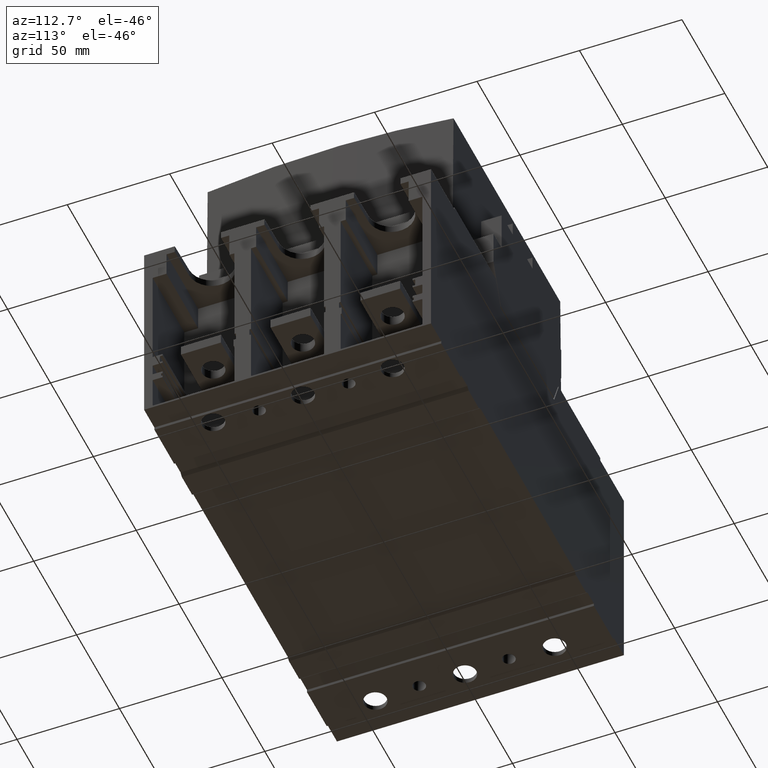
[diagram: clean part render]
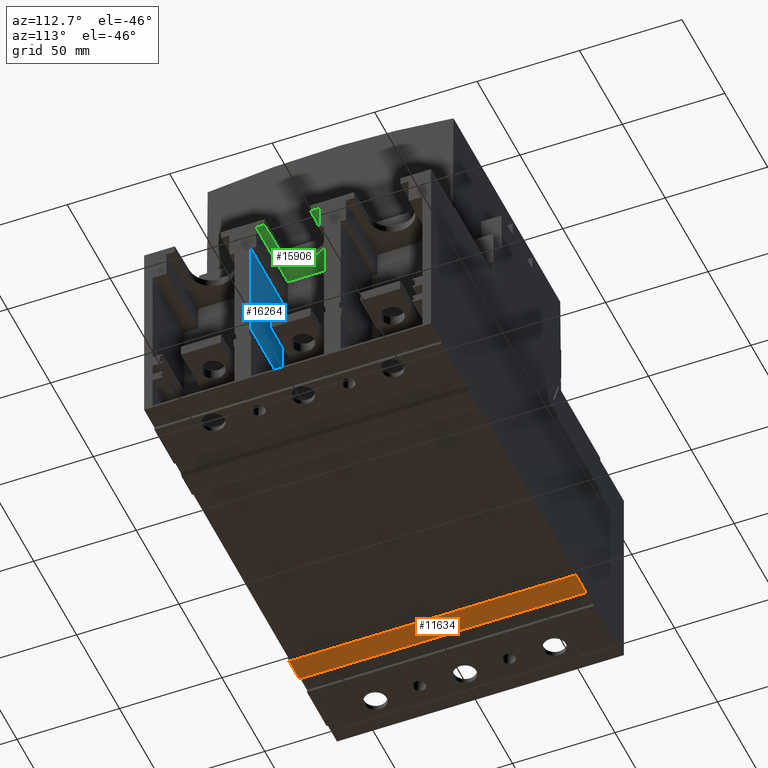
[diagram: same view with three faces highlighted in distinct colors, each labeled with its STEP entity id]
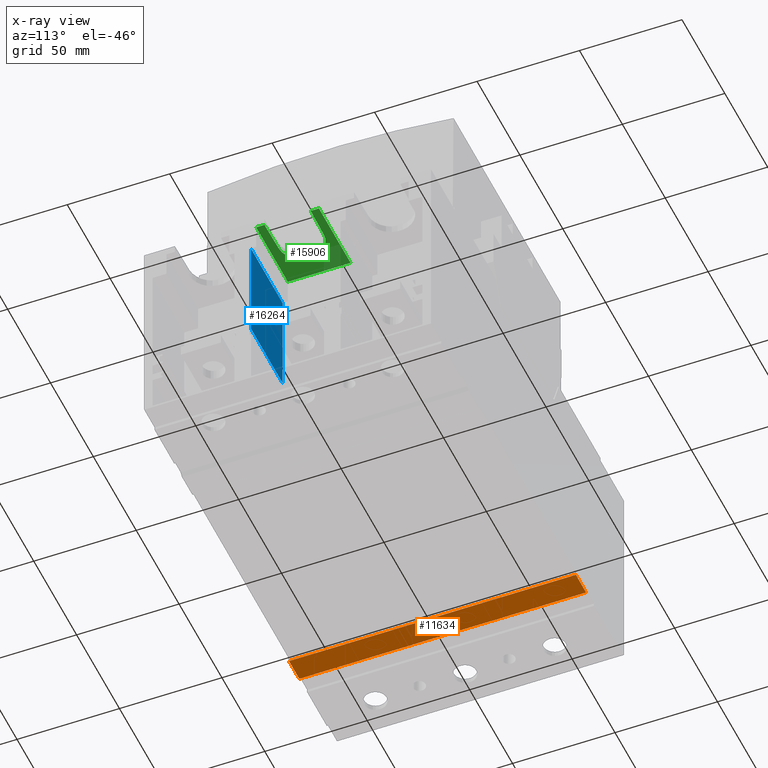
[diagram: x-ray of the same camera — body ghosted, the three highlighted faces saturated]
A machine part, auxiliary view with three faces highlighted in distinct colors.
The next image is the same camera in x-ray (body ghosted, the three faces saturated) — at least one of them is partly hidden behind the body in this view.
Their STEP definitions:

[orange] entity #11634 — the highlighted planar face has unit normal (0, 0, -1).
#100=DIRECTION('',(1.E0,0.E0,0.E0));
#101=VECTOR('',#100,1.2E1);
#102=CARTESIAN_POINT('',(-6.85E1,7.E1,3.490747116305E-2));
#103=LINE('',#102,#101);
#1291=DIRECTION('',(1.E0,0.E0,0.E0));
#1292=VECTOR('',#1291,1.2E1);
#1293=CARTESIAN_POINT('',(-6.85E1,-7.E1,3.490747116305E-2));
#1294=LINE('',#1293,#1292);
#1823=DIRECTION('',(0.E0,-1.E0,0.E0));
#1824=VECTOR('',#1823,1.4E2);
#1825=CARTESIAN_POINT('',(-5.65E1,7.E1,3.490747116305E-2));
#1826=LINE('',#1825,#1824);
#1830=DIRECTION('',(0.E0,-1.E0,0.E0));
#1831=VECTOR('',#1830,1.4E2);
#1832=CARTESIAN_POINT('',(-6.85E1,7.E1,3.490747116305E-2));
#1833=LINE('',#1832,#1831);
#8846=CARTESIAN_POINT('',(-6.85E1,7.E1,3.490747116305E-2));
#8847=VERTEX_POINT('',#8846);
#8848=CARTESIAN_POINT('',(-5.65E1,7.E1,3.490747116305E-2));
#8849=VERTEX_POINT('',#8848);
#8894=CARTESIAN_POINT('',(-6.85E1,-7.E1,3.490747116305E-2));
#8895=VERTEX_POINT('',#8894);
#8896=CARTESIAN_POINT('',(-5.65E1,-7.E1,3.490747116305E-2));
#8897=VERTEX_POINT('',#8896);
#11622=CARTESIAN_POINT('',(-6.85E1,7.E1,3.490747116305E-2));
#11623=DIRECTION('',(0.E0,0.E0,-1.E0));
#11624=DIRECTION('',(1.E0,0.E0,0.E0));
#11625=AXIS2_PLACEMENT_3D('',#11622,#11623,#11624);
#11626=PLANE('',#11625);
#11627=ORIENTED_EDGE('',*,*,#10334,.F.);
#11629=ORIENTED_EDGE('',*,*,#11628,.T.);
#11630=ORIENTED_EDGE('',*,*,#11215,.T.);
#11631=ORIENTED_EDGE('',*,*,#11615,.F.);
#11632=EDGE_LOOP('',(#11627,#11629,#11630,#11631));
#11633=FACE_OUTER_BOUND('',#11632,.F.);
#10334=EDGE_CURVE('',#8847,#8849,#103,.T.);
#11215=EDGE_CURVE('',#8895,#8897,#1294,.T.);
#11615=EDGE_CURVE('',#8849,#8897,#1826,.T.);
#11628=EDGE_CURVE('',#8847,#8895,#1833,.T.);
#11634=ADVANCED_FACE('',(#11633),#11626,.T.);

[blue] entity #16264 — the highlighted planar face has unit normal (0, 1, 0).
#6142=DIRECTION('',(0.E0,0.E0,1.E0));
#6143=VECTOR('',#6142,5.191755637503E1);
#6144=CARTESIAN_POINT('',(1.125E2,-1.783233197810E1,3.311807718445E1));
#6145=LINE('',#6144,#6143);
#7178=DIRECTION('',(0.E0,0.E0,1.E0));
#7179=VECTOR('',#7178,5.191755637503E1);
#7180=CARTESIAN_POINT('',(7.554418102996E1,-1.783233197810E1,3.311807718445E1));
#7181=LINE('',#7180,#7179);
#7795=DIRECTION('',(-1.E0,0.E0,0.E0));
#7796=VECTOR('',#7795,3.695581897004E1);
#7797=CARTESIAN_POINT('',(1.125E2,-1.783233197810E1,3.311807718445E1));
#7798=LINE('',#7797,#7796);
#7802=DIRECTION('',(-1.E0,0.E0,0.E0));
#7803=VECTOR('',#7802,3.695581897004E1);
#7804=CARTESIAN_POINT('',(1.125E2,-1.783233197810E1,8.503563355948E1));
#7805=LINE('',#7804,#7803);
#9784=CARTESIAN_POINT('',(7.554418102996E1,-1.783233197810E1,3.311807718445E1));
#9785=VERTEX_POINT('',#9784);
#9786=CARTESIAN_POINT('',(7.554418102996E1,-1.783233197810E1,8.503563355948E1));
#9787=VERTEX_POINT('',#9786);
#9979=CARTESIAN_POINT('',(1.125E2,-1.783233197810E1,3.311807718445E1));
#9980=VERTEX_POINT('',#9979);
#9981=CARTESIAN_POINT('',(1.125E2,-1.783233197810E1,8.503563355948E1));
#9982=VERTEX_POINT('',#9981);
#16252=CARTESIAN_POINT('',(1.125441810300E2,-1.783233197810E1,
3.311807718445E1));
#16253=DIRECTION('',(0.E0,1.E0,0.E0));
#16254=DIRECTION('',(0.E0,0.E0,1.E0));
#16255=AXIS2_PLACEMENT_3D('',#16252,#16253,#16254);
#16256=PLANE('',#16255);
#16257=ORIENTED_EDGE('',*,*,#16246,.F.);
#16258=ORIENTED_EDGE('',*,*,#14875,.T.);
#16260=ORIENTED_EDGE('',*,*,#16259,.T.);
#16261=ORIENTED_EDGE('',*,*,#15769,.F.);
#16262=EDGE_LOOP('',(#16257,#16258,#16260,#16261));
#16263=FACE_OUTER_BOUND('',#16262,.F.);
#14875=EDGE_CURVE('',#9980,#9982,#6145,.T.);
#15769=EDGE_CURVE('',#9785,#9787,#7181,.T.);
#16246=EDGE_CURVE('',#9980,#9785,#7798,.T.);
#16259=EDGE_CURVE('',#9982,#9787,#7805,.T.);
#16264=ADVANCED_FACE('',(#16263),#16256,.T.);

[green] entity #15906 — the highlighted planar face has unit normal (0, 0, -1).
#6110=DIRECTION('',(0.E0,1.E0,0.E0));
#6111=VECTOR('',#6110,4.052146513511E0);
#6112=CARTESIAN_POINT('',(1.125E2,-1.533233197810E1,9.788663761366E1));
#6113=LINE('',#6112,#6111);
#6308=DIRECTION('',(0.E0,1.E0,0.E0));
#6309=VECTOR('',#6308,4.052146513511E0);
#6310=CARTESIAN_POINT('',(1.125E2,1.128018546459E1,9.788663761366E1));
#6311=LINE('',#6310,#6309);
#7012=DIRECTION('',(0.E0,1.E0,0.E0));
#7013=VECTOR('',#7012,3.066466395620E1);
#7014=CARTESIAN_POINT('',(7.554418102996E1,-1.533233197810E1,9.788663761366E1));
#7015=LINE('',#7014,#7013);
#7603=DIRECTION('',(-9.998476951564E-1,1.745240643728E-2,0.E0));
#7604=VECTOR('',#7603,1.615025520294E1);
#7605=CARTESIAN_POINT('',(1.125E2,-1.128018546459E1,9.788663761366E1));
#7606=LINE('',#7605,#7604);
#7610=CARTESIAN_POINT('',(9.654418102996E1,-1.989519660128E-13,
9.788663761366E1));
#7611=DIRECTION('',(0.E0,0.E0,-1.E0));
#7612=DIRECTION('',(-1.745240643723E-2,-9.998476951564E-1,0.E0));
#7613=AXIS2_PLACEMENT_3D('',#7610,#7611,#7612);
#7618=DIRECTION('',(-9.998476951564E-1,-1.745240643728E-2,0.E0));
#7619=VECTOR('',#7618,1.615025520295E1);
#7620=CARTESIAN_POINT('',(1.125E2,1.128018546459E1,9.788663761366E1));
#7621=LINE('',#7620,#7619);
#7625=DIRECTION('',(-1.E0,0.E0,0.E0));
#7626=VECTOR('',#7625,3.695581897004E1);
#7627=CARTESIAN_POINT('',(1.125E2,-1.533233197810E1,9.788663761366E1));
#7628=LINE('',#7627,#7626);
#7646=DIRECTION('',(-1.E0,0.E0,0.E0));
#7647=VECTOR('',#7646,3.695581897004E1);
#7648=CARTESIAN_POINT('',(1.125E2,1.533233197810E1,9.788663761366E1));
#7649=LINE('',#7648,#7647);
#9680=CARTESIAN_POINT('',(7.554418102996E1,-1.533233197810E1,9.788663761366E1));
#9681=CARTESIAN_POINT('',(7.554418102996E1,1.533233197810E1,9.788663761366E1));
#9682=VERTEX_POINT('',#9680);
#9683=VERTEX_POINT('',#9681);
#9939=CARTESIAN_POINT('',(1.125E2,-1.533233197810E1,9.788663761366E1));
#9940=VERTEX_POINT('',#9939);
#9941=CARTESIAN_POINT('',(1.125E2,1.533233197810E1,9.788663761366E1));
#9942=VERTEX_POINT('',#9941);
#10170=CARTESIAN_POINT('',(9.635220455915E1,-1.099832464672E1,
9.788663761366E1));
#10172=VERTEX_POINT('',#10170);
#10174=CARTESIAN_POINT('',(9.635220455915E1,1.099832464672E1,9.788663761366E1));
#10176=VERTEX_POINT('',#10174);
#10242=CARTESIAN_POINT('',(1.125E2,-1.128018546459E1,9.788663761366E1));
#10244=VERTEX_POINT('',#10242);
#10246=CARTESIAN_POINT('',(1.125E2,1.128018546459E1,9.788663761366E1));
#10248=VERTEX_POINT('',#10246);
#15886=CARTESIAN_POINT('',(1.125441810300E2,-1.533233197810E1,
9.788663761366E1));
#15887=DIRECTION('',(0.E0,0.E0,-1.E0));
#15888=DIRECTION('',(0.E0,1.E0,0.E0));
#15889=AXIS2_PLACEMENT_3D('',#15886,#15887,#15888);
#15890=PLANE('',#15889);
#15892=ORIENTED_EDGE('',*,*,#15891,.T.);
#15894=ORIENTED_EDGE('',*,*,#15893,.T.);
#15896=ORIENTED_EDGE('',*,*,#15895,.F.);
#15897=ORIENTED_EDGE('',*,*,#14915,.T.);
#15899=ORIENTED_EDGE('',*,*,#15898,.T.);
#15900=ORIENTED_EDGE('',*,*,#15729,.F.);
#15902=ORIENTED_EDGE('',*,*,#15901,.F.);
#15903=ORIENTED_EDGE('',*,*,#14867,.T.);
#15904=EDGE_LOOP('',(#15892,#15894,#15896,#15897,#15899,#15900,#15902,#15903));
#15905=FACE_OUTER_BOUND('',#15904,.F.);
#7614=CIRCLE('',#7613,1.1E1);
#14867=EDGE_CURVE('',#9940,#10244,#6113,.T.);
#14915=EDGE_CURVE('',#10248,#9942,#6311,.T.);
#15729=EDGE_CURVE('',#9682,#9683,#7015,.T.);
#15891=EDGE_CURVE('',#10244,#10172,#7606,.T.);
#15893=EDGE_CURVE('',#10172,#10176,#7614,.T.);
#15895=EDGE_CURVE('',#10248,#10176,#7621,.T.);
#15898=EDGE_CURVE('',#9942,#9683,#7649,.T.);
#15901=EDGE_CURVE('',#9940,#9682,#7628,.T.);
#15906=ADVANCED_FACE('',(#15905),#15890,.T.);